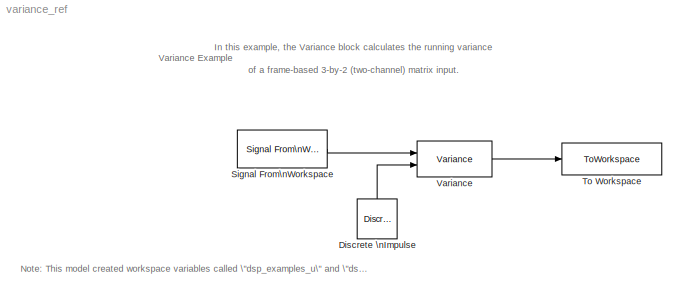
MODEL variance_ref
KIND model
CONFIG AbsTol = auto
CONFIG FixedStep = auto
CONFIG MaxStep = auto
CONFIG MinStep = auto
CONFIG PostLoadFcn = set_param(gcs,'SimulationCommand','Update')
CONFIG PreLoadFcn = dsp_examples_u = [6 1 3 -7 2 5 8 0 -1 -3 2 1;1 3 9 2 4 1 6 2 5 0 4 17]';
CONFIG RelTol = 1e-3
CONFIG Solver = FixedStepDiscrete
CONFIG SolverMode = Auto
CONFIG StartTime = 0.0
CONFIG StopTime = 5
BLOCK [Reference] Discrete \nImpulse  REF=dspsrcs3/Discrete \nImpulse
  Datatype = Double
  Delay = 2
  FrameSample = 1
  Ports = [0, 1]
  SampleTime = 1
  SourceBlock = dspsrcs3/Discrete \nImpulse
  SourceType = Discrete Impulse
BLOCK [Reference] Signal From\nWorkspace  REF=dspsrcs3/Signal From\nWorkspace
  OutputAfterFinalValue = Setting To Zero
  Ports = [0, 1]
  SourceBlock = dspsrcs3/Signal From\nWorkspace
  SourceType = Signal From Workspace
  Ts = 1/3
  X = dsp_examples_u
  nsamps = 3
BLOCK [ToWorkspace] To Workspace
  Decimation = 1
  MaxDataPoints = inf
  SampleTime = -1
  SaveFormat = Array
  VariableName = dsp_examples_yout
BLOCK [Reference] Variance  REF=dspstat3/Variance
  Ports = [2, 1]
  SourceBlock = dspstat3/Variance
  SourceType = Variance
  reset_popup = Non-zero sample
  run = on
LINE Discrete \nImpulse:1 -> Variance:2
LINE Signal From\nWorkspace:1 -> Variance:1
LINE Variance:1 -> To Workspace:1
